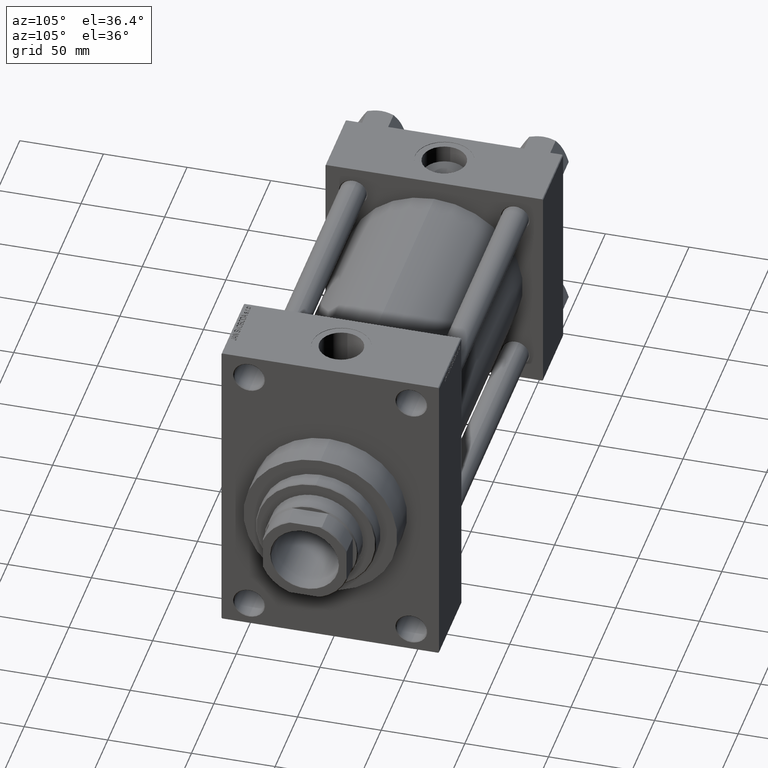
[diagram: clean part render]
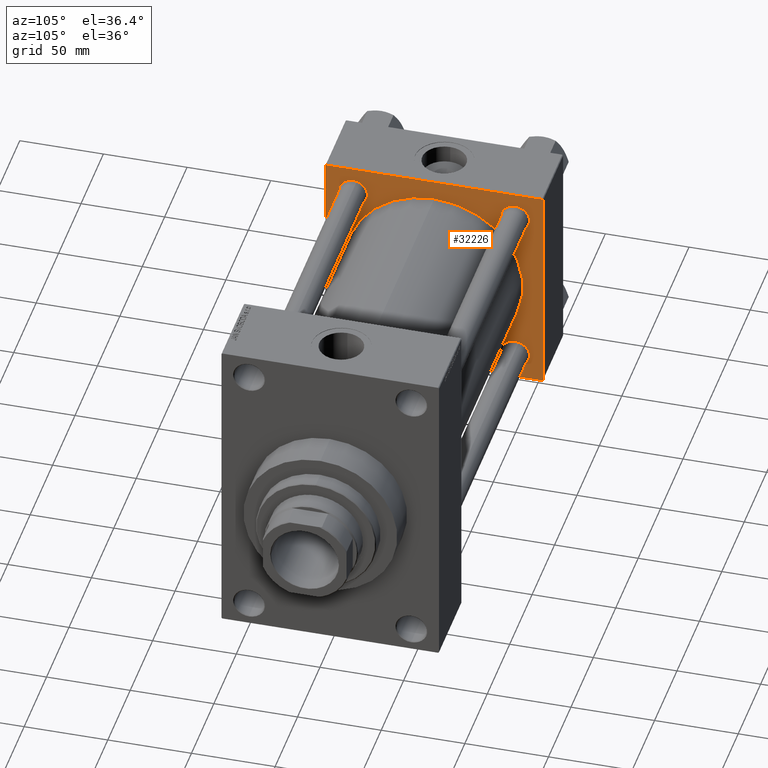
[diagram: same view with one face highlighted and labeled with its STEP entity id]
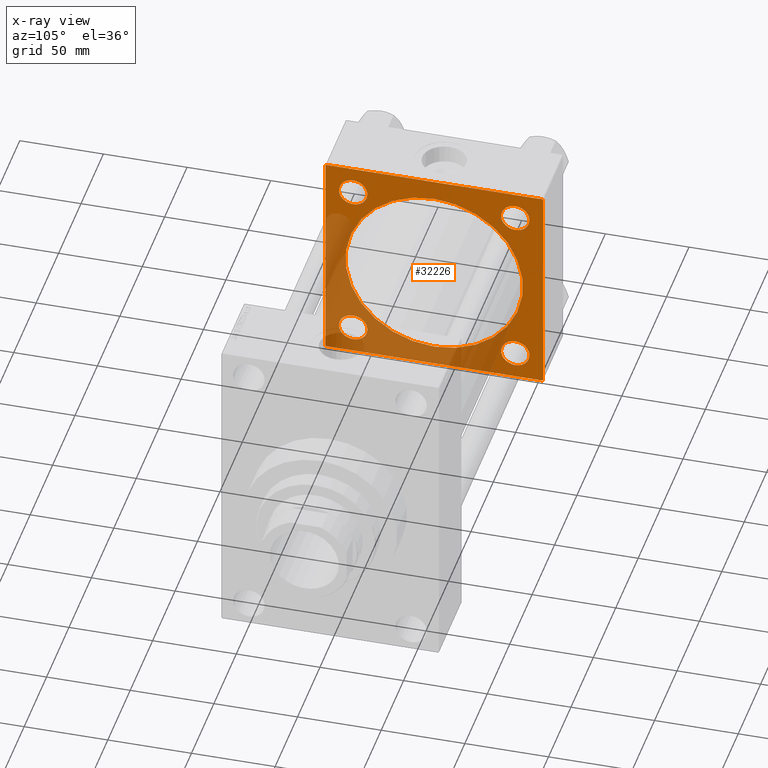
[diagram: x-ray of the same camera — body ghosted, the highlighted face saturated]
A machine part, auxiliary view. The second image highlights one B-rep face of the part: STEP entity #32226.
The next image is the same camera in x-ray: the body ghosted, the highlighted face saturated — about 40% of this face is hidden behind the body in this view.
In plain terms, the highlighted planar face has unit normal (-1, 0, 0).
Its self-contained STEP definition (entity closure, byte-faithful):
#146 = CARTESIAN_POINT ( 'NONE',  ( 45.00000000000000000, 64.49999999999997158, 65.00000000000001421 ) ) ;
#340 = EDGE_CURVE ( 'NONE', #23618, #27884, #4843, .T. ) ;
#389 = CARTESIAN_POINT ( 'NONE',  ( 45.00000000000000000, -48.44999999999999574, -48.45000000000003126 ) ) ;
#564 = AXIS2_PLACEMENT_3D ( 'NONE', #6811, #21546, #14532 ) ;
#642 = ORIENTED_EDGE ( 'NONE', *, *, #26646, .T. ) ;
#793 = ORIENTED_EDGE ( 'NONE', *, *, #9219, .T. ) ;
#806 = CIRCLE ( 'NONE', #16994, 8.500000000000007105 ) ;
#927 = CIRCLE ( 'NONE', #19437, 8.500000000000007105 ) ;
#1097 = DIRECTION ( 'NONE',  ( -1.000000000000000000, 0.000000000000000000, -0.000000000000000000 ) ) ;
#1252 = AXIS2_PLACEMENT_3D ( 'NONE', #24720, #24963, #36070 ) ;
#2032 = CARTESIAN_POINT ( 'NONE',  ( 45.00000000000000000, 64.49999999999997158, 65.00000000000001421 ) ) ;
#2270 = CARTESIAN_POINT ( 'NONE',  ( 45.00000000000000000, -48.44999999999999574, 56.95000000000003837 ) ) ;
#2536 = VERTEX_POINT ( 'NONE', #45637 ) ;
#3151 = VERTEX_POINT ( 'NONE', #23969 ) ;
#3494 = CARTESIAN_POINT ( 'NONE',  ( 44.99999999999998579, -2.602085213965210642E-15, 53.00000000000000711 ) ) ;
#3535 = LINE ( 'NONE', #146, #8388 ) ;
#3635 = EDGE_CURVE ( 'NONE', #9654, #19670, #6278, .T. ) ;
#3836 = CARTESIAN_POINT ( 'NONE',  ( 44.99999999999998579, -2.602085213965210642E-15, 0.000000000000000000 ) ) ;
#4430 = CIRCLE ( 'NONE', #564, 8.500000000000007105 ) ;
#4733 = VERTEX_POINT ( 'NONE', #19751 ) ;
#4843 = CIRCLE ( 'NONE', #22580, 53.00000000000000711 ) ;
#4869 = EDGE_LOOP ( 'NONE', ( #24992, #43624, #27396, #19328, #46661, #5099, #45714, #18148 ) ) ;
#5099 = ORIENTED_EDGE ( 'NONE', *, *, #24969, .T. ) ;
#5268 = CARTESIAN_POINT ( 'NONE',  ( 45.00000000000000000, -65.00000000000000000, 65.00000000000000000 ) ) ;
#5576 = DIRECTION ( 'NONE',  ( 0.000000000000000000, 0.000000000000000000, 1.000000000000000000 ) ) ;
#5770 = FACE_BOUND ( 'NONE', #20065, .T. ) ;
#6278 = LINE ( 'NONE', #24385, #15087 ) ;
#6482 = PLANE ( 'NONE',  #11533 ) ;
#6511 = EDGE_CURVE ( 'NONE', #3151, #29194, #31543, .T. ) ;
#6811 = CARTESIAN_POINT ( 'NONE',  ( 45.00000000000000000, 48.45000000000000995, -48.45000000000001705 ) ) ;
#7946 = EDGE_CURVE ( 'NONE', #16597, #25700, #15901, .T. ) ;
#8069 = VECTOR ( 'NONE', #14441, 1000.000000000000000 ) ;
#8329 = DIRECTION ( 'NONE',  ( 0.000000000000000000, 0.000000000000000000, 1.000000000000000000 ) ) ;
#8388 = VECTOR ( 'NONE', #14632, 1000.000000000000114 ) ;
#8478 = DIRECTION ( 'NONE',  ( 0.000000000000000000, -1.000000000000000000, -1.067522139062650425E-16 ) ) ;
#8570 = EDGE_CURVE ( 'NONE', #27884, #23618, #8975, .T. ) ;
#8659 = EDGE_LOOP ( 'NONE', ( #45036, #46173 ) ) ;
#8762 = CIRCLE ( 'NONE', #35753, 8.500000000000007105 ) ;
#8975 = CIRCLE ( 'NONE', #15149, 53.00000000000000711 ) ;
#9219 = EDGE_CURVE ( 'NONE', #14220, #21485, #11285, .T. ) ;
#9654 = VERTEX_POINT ( 'NONE', #34221 ) ;
#9861 = FACE_BOUND ( 'NONE', #24618, .T. ) ;
#9997 = AXIS2_PLACEMENT_3D ( 'NONE', #29464, #26076, #14988 ) ;
#10020 = VERTEX_POINT ( 'NONE', #15346 ) ;
#10135 = DIRECTION ( 'NONE',  ( 0.000000000000000000, -1.000000000000000000, -1.067522139062650425E-16 ) ) ;
#10150 = DIRECTION ( 'NONE',  ( -0.000000000000000000, -0.7071067811865672237, -0.7071067811865279218 ) ) ;
#10347 = DIRECTION ( 'NONE',  ( -0.000000000000000000, 0.000000000000000000, 1.000000000000000000 ) ) ;
#10498 = VERTEX_POINT ( 'NONE', #40761 ) ;
#10605 = DIRECTION ( 'NONE',  ( 0.000000000000000000, 0.000000000000000000, 1.000000000000000000 ) ) ;
#10839 = DIRECTION ( 'NONE',  ( 1.000000000000000000, -0.000000000000000000, 0.000000000000000000 ) ) ;
#11285 = CIRCLE ( 'NONE', #39071, 8.500000000000007105 ) ;
#11315 = EDGE_CURVE ( 'NONE', #4733, #39182, #4430, .T. ) ;
#11533 = AXIS2_PLACEMENT_3D ( 'NONE', #20262, #46091, #10347 ) ;
#12253 = CARTESIAN_POINT ( 'NONE',  ( 45.00000000000000000, 48.45000000000000995, 48.45000000000001705 ) ) ;
#12704 = ORIENTED_EDGE ( 'NONE', *, *, #340, .F. ) ;
#14220 = VERTEX_POINT ( 'NONE', #35439 ) ;
#14441 = DIRECTION ( 'NONE',  ( 0.000000000000000000, 0.7071067811865279218, -0.7071067811865671127 ) ) ;
#14532 = DIRECTION ( 'NONE',  ( 0.000000000000000000, 0.000000000000000000, 1.000000000000000000 ) ) ;
#14618 = CARTESIAN_POINT ( 'NONE',  ( 45.00000000000000000, 65.00000000000000000, -64.49999999999995737 ) ) ;
#14632 = DIRECTION ( 'NONE',  ( 0.000000000000000000, -0.7071067811865474617, 0.7071067811865474617 ) ) ;
#14988 = DIRECTION ( 'NONE',  ( 0.000000000000000000, 0.000000000000000000, 1.000000000000000000 ) ) ;
#15087 = VECTOR ( 'NONE', #10135, 1000.000000000000000 ) ;
#15149 = AXIS2_PLACEMENT_3D ( 'NONE', #3836, #10839, #10605 ) ;
#15346 = CARTESIAN_POINT ( 'NONE',  ( 45.00000000000000000, -48.44999999999999574, -39.95000000000001705 ) ) ;
#15448 = VECTOR ( 'NONE', #8478, 1000.000000000000000 ) ;
#15901 = CIRCLE ( 'NONE', #1252, 8.500000000000007105 ) ;
#16380 = EDGE_LOOP ( 'NONE', ( #40712, #793 ) ) ;
#16597 = VERTEX_POINT ( 'NONE', #21575 ) ;
#16780 = CARTESIAN_POINT ( 'NONE',  ( 45.00000000000000000, 48.45000000000000995, -39.95000000000000284 ) ) ;
#16829 = DIRECTION ( 'NONE',  ( 0.000000000000000000, 0.000000000000000000, -1.000000000000000000 ) ) ;
#16994 = AXIS2_PLACEMENT_3D ( 'NONE', #389, #1097, #8329 ) ;
#17667 = DIRECTION ( 'NONE',  ( 0.000000000000000000, 0.000000000000000000, 1.000000000000000000 ) ) ;
#17882 = LINE ( 'NONE', #32605, #29432 ) ;
#18148 = ORIENTED_EDGE ( 'NONE', *, *, #28953, .T. ) ;
#19075 = EDGE_CURVE ( 'NONE', #10020, #10498, #30813, .T. ) ;
#19328 = ORIENTED_EDGE ( 'NONE', *, *, #31133, .T. ) ;
#19437 = AXIS2_PLACEMENT_3D ( 'NONE', #12253, #41688, #26722 ) ;
#19670 = VERTEX_POINT ( 'NONE', #47473 ) ;
#19751 = CARTESIAN_POINT ( 'NONE',  ( 45.00000000000000000, 48.45000000000000995, -56.95000000000002416 ) ) ;
#20065 = EDGE_LOOP ( 'NONE', ( #37098, #642 ) ) ;
#20262 = CARTESIAN_POINT ( 'NONE',  ( 45.00000000000000000, 0.000000000000000000, 0.000000000000000000 ) ) ;
#20955 = DIRECTION ( 'NONE',  ( -0.000000000000000000, 0.7071067811865474617, 0.7071067811865474617 ) ) ;
#21126 = ORIENTED_EDGE ( 'NONE', *, *, #34435, .T. ) ;
#21485 = VERTEX_POINT ( 'NONE', #24630 ) ;
#21546 = DIRECTION ( 'NONE',  ( -1.000000000000000000, 0.000000000000000000, -0.000000000000000000 ) ) ;
#21575 = CARTESIAN_POINT ( 'NONE',  ( 45.00000000000000000, -48.44999999999999574, 39.95000000000001705 ) ) ;
#22286 = EDGE_CURVE ( 'NONE', #42031, #2536, #41314, .T. ) ;
#22580 = AXIS2_PLACEMENT_3D ( 'NONE', #22687, #44653, #41259 ) ;
#22687 = CARTESIAN_POINT ( 'NONE',  ( 44.99999999999998579, -2.602085213965210642E-15, 0.000000000000000000 ) ) ;
#23131 = DIRECTION ( 'NONE',  ( 0.000000000000000000, 0.000000000000000000, -1.000000000000000000 ) ) ;
#23551 = VECTOR ( 'NONE', #16829, 1000.000000000000000 ) ;
#23618 = VERTEX_POINT ( 'NONE', #3494 ) ;
#23969 = CARTESIAN_POINT ( 'NONE',  ( 45.00000000000000000, 65.00000000000000000, 64.49999999999998579 ) ) ;
#24385 = CARTESIAN_POINT ( 'NONE',  ( 45.00000000000000000, 65.00000000000000000, -64.99999999999998579 ) ) ;
#24618 = EDGE_LOOP ( 'NONE', ( #21126, #34368 ) ) ;
#24630 = CARTESIAN_POINT ( 'NONE',  ( 45.00000000000000000, 48.45000000000000995, 39.95000000000000284 ) ) ;
#24720 = CARTESIAN_POINT ( 'NONE',  ( 45.00000000000000000, -48.44999999999999574, 48.45000000000003126 ) ) ;
#24963 = DIRECTION ( 'NONE',  ( -1.000000000000000000, 0.000000000000000000, -0.000000000000000000 ) ) ;
#24969 = EDGE_CURVE ( 'NONE', #2536, #25468, #17882, .T. ) ;
#24992 = ORIENTED_EDGE ( 'NONE', *, *, #3635, .F. ) ;
#25468 = VERTEX_POINT ( 'NONE', #28140 ) ;
#25700 = VERTEX_POINT ( 'NONE', #2270 ) ;
#26076 = DIRECTION ( 'NONE',  ( -1.000000000000000000, 0.000000000000000000, -0.000000000000000000 ) ) ;
#26251 = EDGE_CURVE ( 'NONE', #21485, #14220, #927, .T. ) ;
#26646 = EDGE_CURVE ( 'NONE', #25700, #16597, #27944, .T. ) ;
#26722 = DIRECTION ( 'NONE',  ( 0.000000000000000000, 0.000000000000000000, 1.000000000000000000 ) ) ;
#27396 = ORIENTED_EDGE ( 'NONE', *, *, #6511, .F. ) ;
#27727 = FACE_BOUND ( 'NONE', #39587, .T. ) ;
#27884 = VERTEX_POINT ( 'NONE', #36254 ) ;
#27944 = CIRCLE ( 'NONE', #43384, 8.500000000000007105 ) ;
#28140 = CARTESIAN_POINT ( 'NONE',  ( 45.00000000000000000, -65.00000000000000000, 64.50000000000000000 ) ) ;
#28181 = LINE ( 'NONE', #42905, #40325 ) ;
#28277 = CARTESIAN_POINT ( 'NONE',  ( 45.00000000000000000, 48.45000000000000995, 48.45000000000001705 ) ) ;
#28420 = EDGE_CURVE ( 'NONE', #9654, #29194, #28181, .T. ) ;
#28675 = LINE ( 'NONE', #36413, #8069 ) ;
#28953 = EDGE_CURVE ( 'NONE', #30360, #19670, #28675, .T. ) ;
#29194 = VERTEX_POINT ( 'NONE', #14618 ) ;
#29432 = VECTOR ( 'NONE', #10150, 1000.000000000000000 ) ;
#29464 = CARTESIAN_POINT ( 'NONE',  ( 45.00000000000000000, -48.44999999999999574, -48.45000000000003126 ) ) ;
#30360 = VERTEX_POINT ( 'NONE', #38980 ) ;
#30448 = CARTESIAN_POINT ( 'NONE',  ( 45.00000000000000000, 48.45000000000000995, -48.45000000000001705 ) ) ;
#30813 = CIRCLE ( 'NONE', #9997, 8.500000000000007105 ) ;
#31133 = EDGE_CURVE ( 'NONE', #3151, #42031, #3535, .T. ) ;
#31543 = LINE ( 'NONE', #35396, #23551 ) ;
#32075 = FACE_BOUND ( 'NONE', #16380, .T. ) ;
#32226 = ADVANCED_FACE ( 'NONE', ( #9861, #32309, #5770, #32075, #27727, #35450 ), #6482, .F. ) ;
#32309 = FACE_BOUND ( 'NONE', #8659, .T. ) ;
#32605 = CARTESIAN_POINT ( 'NONE',  ( 45.00000000000000000, -65.00000000000000000, 64.50000000000000000 ) ) ;
#34221 = CARTESIAN_POINT ( 'NONE',  ( 45.00000000000000000, 64.49999999999997158, -64.99999999999998579 ) ) ;
#34368 = ORIENTED_EDGE ( 'NONE', *, *, #19075, .T. ) ;
#34435 = EDGE_CURVE ( 'NONE', #10498, #10020, #806, .T. ) ;
#35396 = CARTESIAN_POINT ( 'NONE',  ( 45.00000000000000000, 65.00000000000000000, 65.00000000000001421 ) ) ;
#35439 = CARTESIAN_POINT ( 'NONE',  ( 45.00000000000000000, 48.45000000000000995, 56.95000000000002416 ) ) ;
#35450 = FACE_OUTER_BOUND ( 'NONE', #4869, .T. ) ;
#35753 = AXIS2_PLACEMENT_3D ( 'NONE', #30448, #38645, #5576 ) ;
#36070 = DIRECTION ( 'NONE',  ( 0.000000000000000000, 0.000000000000000000, 1.000000000000000000 ) ) ;
#36254 = CARTESIAN_POINT ( 'NONE',  ( 44.99999999999998579, 3.888542821515762466E-15, -53.00000000000000711 ) ) ;
#36413 = CARTESIAN_POINT ( 'NONE',  ( 45.00000000000000000, -64.49999999999994316, -65.00000000000000000 ) ) ;
#37098 = ORIENTED_EDGE ( 'NONE', *, *, #7946, .T. ) ;
#38645 = DIRECTION ( 'NONE',  ( -1.000000000000000000, 0.000000000000000000, -0.000000000000000000 ) ) ;
#38980 = CARTESIAN_POINT ( 'NONE',  ( 45.00000000000000000, -65.00000000000000000, -64.49999999999991473 ) ) ;
#39071 = AXIS2_PLACEMENT_3D ( 'NONE', #28277, #39156, #17667 ) ;
#39156 = DIRECTION ( 'NONE',  ( -1.000000000000000000, 0.000000000000000000, -0.000000000000000000 ) ) ;
#39182 = VERTEX_POINT ( 'NONE', #16780 ) ;
#39212 = DIRECTION ( 'NONE',  ( 0.000000000000000000, 0.000000000000000000, 1.000000000000000000 ) ) ;
#39587 = EDGE_LOOP ( 'NONE', ( #12704, #47049 ) ) ;
#40325 = VECTOR ( 'NONE', #20955, 1000.000000000000114 ) ;
#40712 = ORIENTED_EDGE ( 'NONE', *, *, #26251, .T. ) ;
#40761 = CARTESIAN_POINT ( 'NONE',  ( 45.00000000000000000, -48.44999999999999574, -56.95000000000003837 ) ) ;
#40998 = LINE ( 'NONE', #5268, #46581 ) ;
#41259 = DIRECTION ( 'NONE',  ( 0.000000000000000000, 0.000000000000000000, 1.000000000000000000 ) ) ;
#41314 = LINE ( 'NONE', #42269, #15448 ) ;
#41688 = DIRECTION ( 'NONE',  ( -1.000000000000000000, 0.000000000000000000, -0.000000000000000000 ) ) ;
#42031 = VERTEX_POINT ( 'NONE', #2032 ) ;
#42269 = CARTESIAN_POINT ( 'NONE',  ( 45.00000000000000000, 65.00000000000000000, 65.00000000000001421 ) ) ;
#42905 = CARTESIAN_POINT ( 'NONE',  ( 45.00000000000000000, 65.00000000000000000, -64.49999999999995737 ) ) ;
#43384 = AXIS2_PLACEMENT_3D ( 'NONE', #46701, #47178, #39212 ) ;
#43624 = ORIENTED_EDGE ( 'NONE', *, *, #28420, .T. ) ;
#44653 = DIRECTION ( 'NONE',  ( 1.000000000000000000, -0.000000000000000000, 0.000000000000000000 ) ) ;
#45036 = ORIENTED_EDGE ( 'NONE', *, *, #11315, .T. ) ;
#45637 = CARTESIAN_POINT ( 'NONE',  ( 45.00000000000000000, -64.49999999999997158, 65.00000000000000000 ) ) ;
#45714 = ORIENTED_EDGE ( 'NONE', *, *, #46280, .T. ) ;
#46091 = DIRECTION ( 'NONE',  ( -1.000000000000000000, 0.000000000000000000, -0.000000000000000000 ) ) ;
#46173 = ORIENTED_EDGE ( 'NONE', *, *, #46774, .T. ) ;
#46280 = EDGE_CURVE ( 'NONE', #25468, #30360, #40998, .T. ) ;
#46581 = VECTOR ( 'NONE', #23131, 1000.000000000000000 ) ;
#46661 = ORIENTED_EDGE ( 'NONE', *, *, #22286, .T. ) ;
#46701 = CARTESIAN_POINT ( 'NONE',  ( 45.00000000000000000, -48.44999999999999574, 48.45000000000003126 ) ) ;
#46774 = EDGE_CURVE ( 'NONE', #39182, #4733, #8762, .T. ) ;
#47049 = ORIENTED_EDGE ( 'NONE', *, *, #8570, .F. ) ;
#47178 = DIRECTION ( 'NONE',  ( -1.000000000000000000, 0.000000000000000000, -0.000000000000000000 ) ) ;
#47473 = CARTESIAN_POINT ( 'NONE',  ( 45.00000000000000000, -64.49999999999994316, -65.00000000000000000 ) ) ;